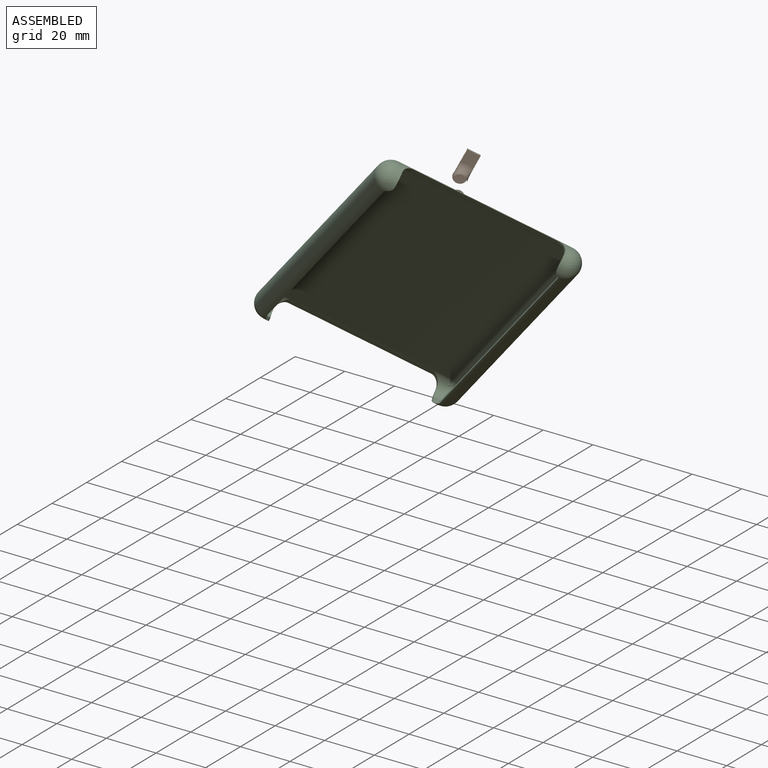
[diagram: assembled view]
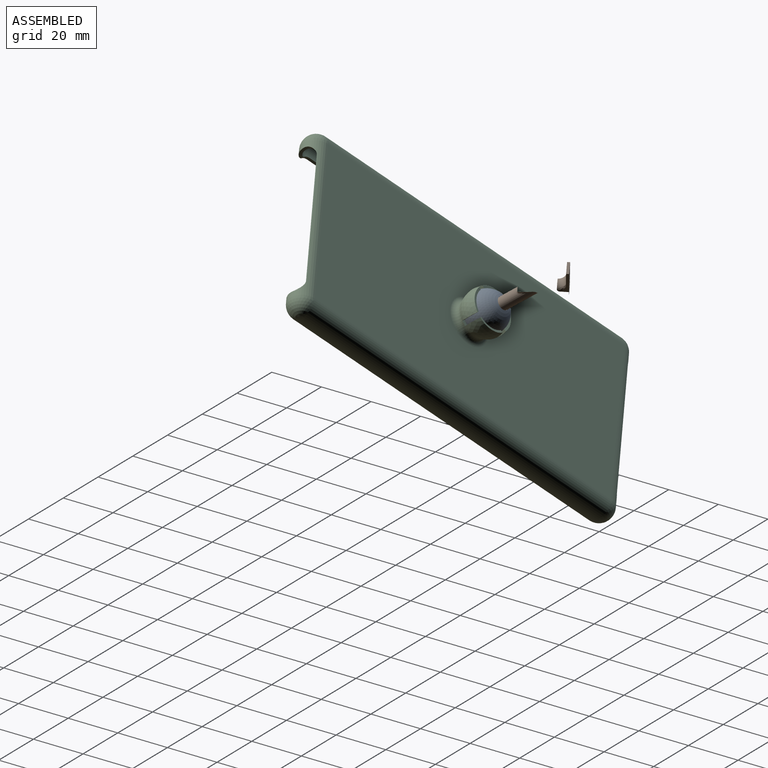
[diagram: assembled view, second angle]
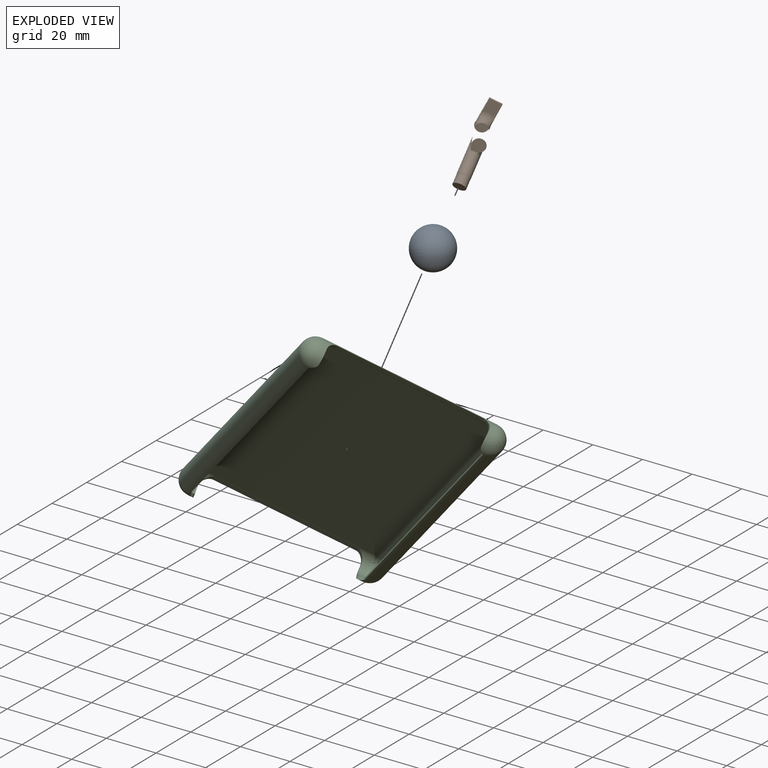
[diagram: exploded view]
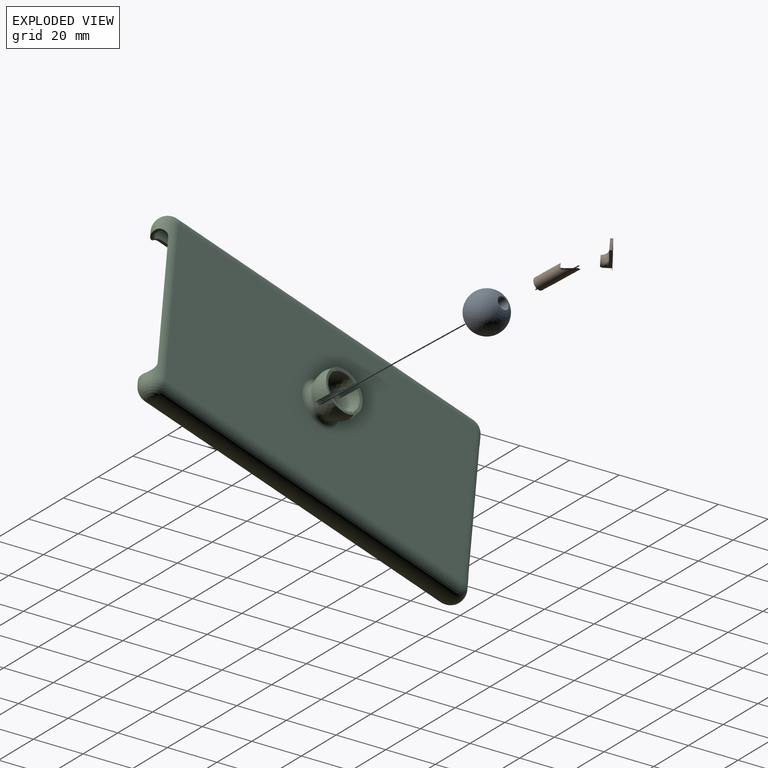
[diagram: exploded view, second angle]
ASSEMBLY  parts=3 mates=2
PART A: 3 faces, bbox 16x16x15.6 mm
  f0: cylinder r=2.5mm len=5mm, axis (0,0,1), area 56.5mm2, adj f1,f2
  f1: sphere r=8mm, area 784.1mm2, adj f0
  f2: plane 5x5mm, normal (0,0,-1), area 19.6mm2, adj f0
PART B: 18 faces, bbox 25.3x35.5x36.3 mm
  f0: cylinder r=2.5mm len=13.75mm, axis (0,-0.71,0.71), area 190mm2, adj f1,f12,f13
  f1: bspline ~7.57x5.02mm, area 13.2mm2, adj f0,f2,f12
  f2: cylinder r=2.55mm len=17.18mm, axis (0,0,-1), area -186.1mm2, adj f1,f3,f10,f11
  f3: plane 10.47x3.7mm, normal (-1,0,0), area 11.4mm2, adj f2,f4,f8,f9,f16
  f4: bspline ~4.73x3.07mm, area 2.9mm2, adj f3,f5,f17
  f5: torus R=5.55mm, axis (0,0,1), area 25.9mm2, adj f4,f6,f8,f17
  f6: bspline ~4.73x3.07mm, area 2.9mm2, adj f5,f7,f17
  f7: plane 19.88x13.1mm, normal (1,0,0), area 11.4mm2, adj f6,f8,f9,f16,f17
  f8: plane 5.22x5mm, normal (0,0,1), area 24.1mm2, adj f3,f5,f7,f9
  f9: plane 5x1mm, normal (0,1,0), area 5mm2, adj f3,f7,f8,f16
  f10: plane 15.3x15.3mm, normal (0,0,1), area 20.4mm2, adj f2,f16,f17
  f11: plane 5.73x5.73mm, normal (0,0,1), area 20.4mm2, adj f2,f12
  f12: bspline ~3.54x1.45mm, area 3mm2, adj f0,f1,f11
  f13: cone r=2.45mm half-angle=45deg, axis (0,0.71,-0.71), area 1.1mm2, adj f0,f14
  f14: cylinder r=2.45mm len=6.15mm, axis (0,0.71,-0.71), area 58.5mm2, adj f13,f15
  f15: plane 4.9x3.47mm, normal (0,-0.71,0.71), area 18.9mm2, adj f14
  f16: plane 9.68x5.01mm, normal (0,0,-1), area 40.7mm2, adj f3,f7,f9,f10
  f17: cylinder r=2.55mm len=5.05mm, axis (0,0,-1), area 15.7mm2, adj f4,f5,f6,f7,f10
PART C: 67 faces, bbox 76x22x151 mm
  f0: plane 1.24x1.11mm, normal (-0.71,0,0.71), area 0mm2, adj f30,f36,f37,f56,f62
  f1: plane 1.04x1.04mm, normal (0,-1,0), area 0.9mm2, adj f2
  f2: plane 139.8x64.8mm, normal (0,-1,0), area 9058.2mm2, adj f1,f34,f35,f36,f37
  f3: sphere r=9mm, area 92.9mm2, adj f8,f13,f19,f26
  f4: sphere r=9mm, area 92.9mm2, adj f12,f17,f20,f26
  f5: sphere r=9mm, area 92.9mm2, adj f11,f18,f24,f26
  f6: plane 139.8x64.8mm, normal (0,1,0), area 8792mm2, adj f26,f28,f29,f30,f31
  f7: cone r=7.58mm half-angle=79.9deg, axis (0,1,0), area 12.7mm2, adj f9,f10,f14,f23
  f8: cone r=7.58mm half-angle=79.9deg, axis (0,1,0), area 12.7mm2, adj f3,f10,f13,f19
  f9: sphere r=9mm, area 92.9mm2, adj f7,f14,f23,f26
  f10: sphere r=7.8mm, area 435.1mm2, adj f7,f8,f11,f12,f13,f14,f15,f16
  f11: cone r=7.58mm half-angle=79.9deg, axis (0,1,0), area 12.7mm2, adj f5,f10,f18,f24
  f12: cone r=7.58mm half-angle=79.9deg, axis (0,1,0), area 12.7mm2, adj f4,f10,f17,f20
  f13: plane 7.81x2.16mm, normal (-0.71,0,0.71), area 9.8mm2, adj f3,f8,f10,f15,f26
  f14: plane 7.81x2.16mm, normal (0.71,0,-0.71), area 9.8mm2, adj f7,f9,f10,f15,f26
  f15: plane 2.49x2.49mm, normal (0,1,0), area 3mm2, adj f10,f13,f14,f26
  f16: plane 2.49x2.49mm, normal (0,1,0), area 3mm2, adj f10,f17,f18,f26
  f17: plane 7.81x2.16mm, normal (-0.71,0,0.71), area 9.8mm2, adj f4,f10,f12,f16,f26
  f18: plane 7.81x2.16mm, normal (0.71,0,-0.71), area 9.8mm2, adj f5,f10,f11,f16,f26
  f19: plane 7.81x2.16mm, normal (-0.71,0,-0.71), area 9.8mm2, adj f3,f8,f10,f21,f26
  f20: plane 7.81x2.16mm, normal (0.71,0,0.71), area 9.8mm2, adj f4,f10,f12,f21,f26
  f21: plane 2.49x2.49mm, normal (0,1,0), area 3mm2, adj f10,f19,f20,f26
  f22: plane 2.49x2.49mm, normal (0,1,0), area 3mm2, adj f10,f23,f24,f26
  f23: plane 7.81x2.16mm, normal (-0.71,0,-0.71), area 9.8mm2, adj f7,f9,f10,f22,f26
  f24: plane 7.81x2.16mm, normal (0.71,0,0.71), area 9.8mm2, adj f5,f10,f11,f22,f26
  f25: plane 1.04x1.04mm, normal (0,1,0), area 0.9mm2, adj f27
  f26: torus R=9.22mm, axis (0,1,0), area 209.1mm2, adj f3,f4,f5,f6,f9,f13,f14,f15
  f27: torus R=0.52mm, axis (0,-1,0), area 9mm2, adj f10,f25
  f28: cylinder r=5.6mm len=139.8mm, axis (0,0,1), area 2459.8mm2, adj f6,f29,f30,f32,f42,f43,f55,f58
  f29: cylinder r=5.6mm len=64.8mm, axis (1,0,0), area 307.6mm2, adj f6,f28,f31,f42,f44,f49,f50,f51
  f30: cylinder r=5.6mm len=64.8mm, axis (-1,0,0), area 307.6mm2, adj f0,f6,f28,f31,f43,f45,f46,f47
  f31: cylinder r=5.6mm len=139.8mm, axis (0,0,-1), area 2459.8mm2, adj f6,f29,f30,f33,f44,f45,f56,f57
  f32: plane 136.76x1.2mm, normal (1,0,0), area 164.1mm2, adj f28,f34,f55,f58
  f33: plane 136.78x1.2mm, normal (-1,0,0), area 164.1mm2, adj f31,f37,f56,f57
  f34: cylinder r=4.4mm len=141.99mm, axis (0,0,1), area 1940.1mm2, adj f2,f32,f38,f39,f52,f53,f55,f58
  f35: cylinder r=4.4mm len=65.6mm, axis (1,0,0), area 104.4mm2, adj f2,f38,f40,f49,f50,f51,f53,f54
  f36: cylinder r=4.4mm len=65.6mm, axis (-1,0,0), area 104.4mm2, adj f0,f2,f39,f41,f46,f47,f48,f52
  f37: cylinder r=4.4mm len=142.01mm, axis (0,0,-1), area 1940.1mm2, adj f0,f2,f33,f40,f41,f54,f56,f57
  f38: bspline ~8.8x4.4mm, area 55.8mm2, adj f34,f35
  f39: bspline ~8.8x4.4mm, area 55.8mm2, adj f34,f36
  f40: bspline ~8.8x4.4mm, area 55.8mm2, adj f35,f37
  f41: bspline ~8.8x4.4mm, area 55.8mm2, adj f36,f37
  f42: sphere r=5.6mm, area 98.5mm2, adj f28,f29
  f43: sphere r=5.6mm, area 98.5mm2, adj f28,f30
  f44: sphere r=5.6mm, area 98.5mm2, adj f29,f31
  f45: sphere r=5.6mm, area 98.5mm2, adj f30,f31
  f46: plane 53.03x3.02mm, normal (0,-1,0), area 160.4mm2, adj f30,f36,f63,f64
  f47: plane 4.85x1.87mm, normal (-1,0,0), area 5.2mm2, adj f30,f36,f62,f63
  f48: plane 4.85x1.87mm, normal (1,0,0), area 5.2mm2, adj f30,f36,f61,f64
  f49: plane 4.85x1.87mm, normal (1,0,0), area 5.2mm2, adj f29,f35,f60,f66
  f50: plane 4.85x1.87mm, normal (-1,0,0), area 5.2mm2, adj f29,f35,f59,f65
  f51: plane 53.03x3.02mm, normal (0,-1,0), area 160.4mm2, adj f29,f35,f65,f66
  f52: plane 1.25x1.11mm, normal (0.71,0,0.71), area 0mm2, adj f30,f34,f36,f58,f61
  f53: plane 1.25x1.11mm, normal (0.71,0,-0.71), area 0mm2, adj f29,f34,f35,f55,f60
  f54: plane 1.24x1.11mm, normal (-0.71,0,-0.71), area 0mm2, adj f29,f35,f37,f57,f59
  f55: cylinder r=3.7mm len=2.62mm, axis (0,-1,0), area 3.6mm2, adj f28,f29,f32,f34,f53
  f56: cylinder r=3.7mm len=2.62mm, axis (0,1,0), area 3.6mm2, adj f0,f30,f31,f33,f37
  f57: cylinder r=3.7mm len=2.62mm, axis (0,1,0), area 3.6mm2, adj f29,f31,f33,f37,f54
  f58: cylinder r=3.7mm len=2.62mm, axis (0,-1,0), area 3.6mm2, adj f28,f30,f32,f34,f52
  f59: cylinder r=3.7mm len=3.16mm, axis (0,-1,0), area 4.1mm2, adj f29,f35,f50,f54
  f60: cylinder r=3.7mm len=3.16mm, axis (0,1,0), area 4.1mm2, adj f29,f35,f49,f53
  f61: cylinder r=3.7mm len=3.16mm, axis (0,1,0), area 4.1mm2, adj f30,f36,f48,f52
  f62: cylinder r=3.7mm len=3.16mm, axis (0,-1,0), area 4.1mm2, adj f0,f30,f36,f47
  f63: cylinder r=3.7mm len=5.09mm, axis (0,0,-1), area 10.5mm2, adj f30,f36,f46,f47
  f64: cylinder r=3.7mm len=5.09mm, axis (0,0,1), area 10.5mm2, adj f30,f36,f46,f48
  f65: cylinder r=3.7mm len=5.09mm, axis (0,0,-1), area 10.5mm2, adj f29,f35,f50,f51
  f66: cylinder r=3.7mm len=5.09mm, axis (0,0,1), area 10.5mm2, adj f29,f35,f49,f51
PLACE A rot(axis=(0.93,0.36,-0.11),128.6deg) t=(6.91,9.56,-0.04)mm
PLACE B rot(axis=(0.87,0.49,0.04),87.9deg) t=(6.49,12.56,2.25)mm
PLACE C rot(axis=(0.17,-0.94,-0.3),144.7deg) t=(-42.06,8.03,-7.1)mm
MATE ball C.f7 <-> A.f0  axis (-0.11,0.79,0.6) through (6.91,9.56,-0.04)mm
MATE fastened A.f0 <-> B.f0  axis (-0.11,0.79,0.6) through (6.46,12.72,2.37)mm
